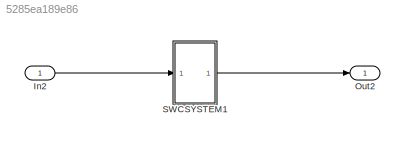
MODEL slx_5285ea189e86
KIND model
CONFIG AbsTol = auto
CONFIG EnableMultiTasking = off
CONFIG FixedStep = auto
CONFIG MaxStep = auto
CONFIG MinStep = auto
CONFIG RelTol = 1e-3
CONFIG SampleTimeConstraint = Unconstrained
CONFIG SolverName = VariableStepAuto
CONFIG StartTime = 0.0
CONFIG StopTime = 10.0
BLOCK [Inport] In2
BLOCK [Outport] Out2
BLOCK [SubSystem] SWCSYSTEM1
  ReferencedSubsystem = SWCSYSTEM1_2
LINE In2:1 -> SWCSYSTEM1:1
LINE SWCSYSTEM1:1 -> Out2:1
